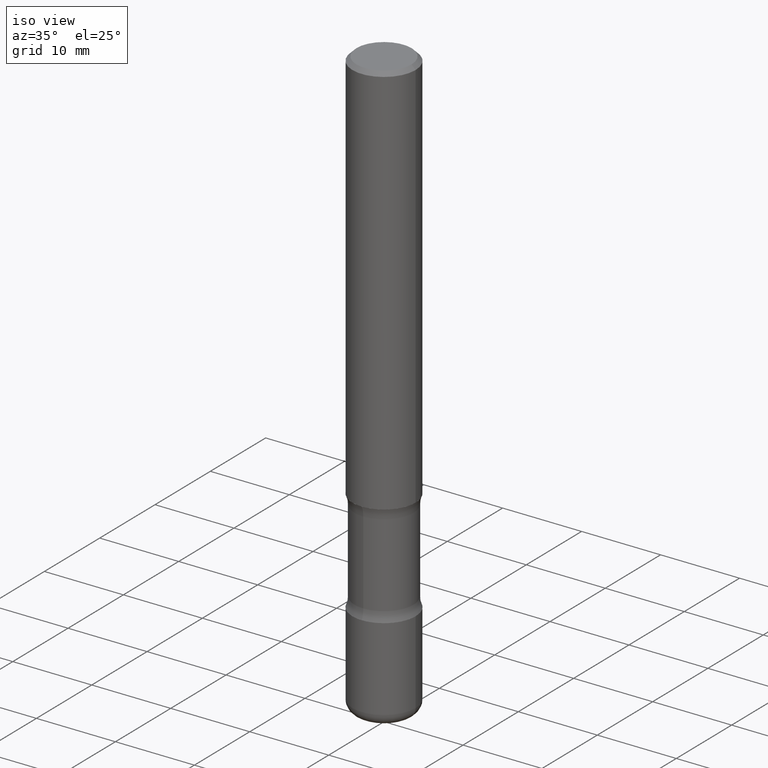
[diagram: clean part render]
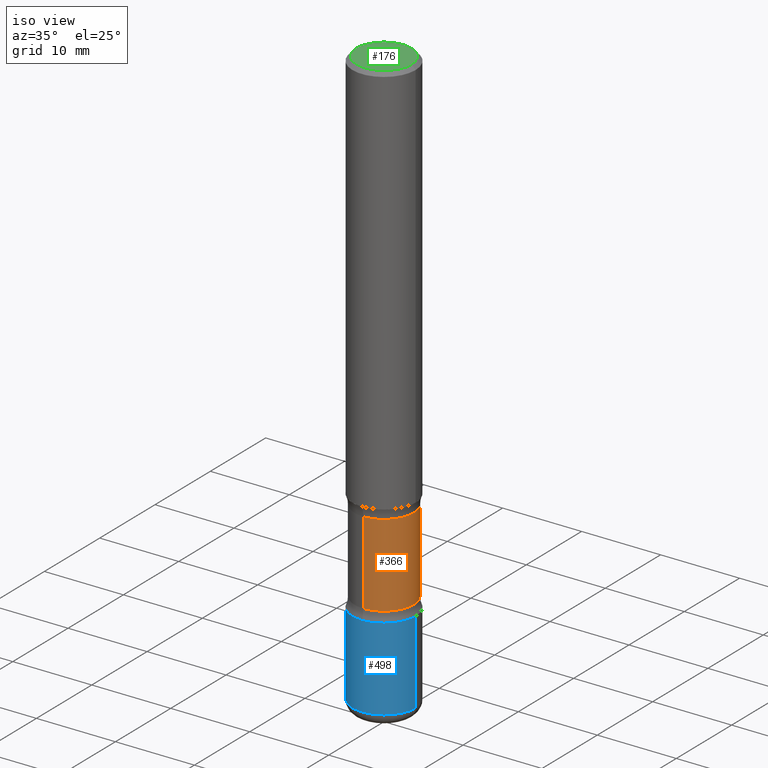
[diagram: same view with three faces highlighted in distinct colors, each labeled with its STEP entity id]
A machine part, iso view with three faces highlighted in distinct colors.
Their STEP definitions:

[orange] entity #366 — the highlighted cylindrical surface (edge-blend (fillet) strip) has radius 3.7427 mm, axis along (0, -0, -1).
#4 = ORIENTED_EDGE ( 'NONE', *, *, #415, .T. ) ;
#15 = ORIENTED_EDGE ( 'NONE', *, *, #443, .T. ) ;
#21 = CIRCLE ( 'NONE', #521, 0.1473500000000000087 ) ;
#35 = CYLINDRICAL_SURFACE ( 'NONE', #333, 0.1473500000000000087 ) ;
#42 = DIRECTION ( 'NONE',  ( 2.474888810202925163E-29, -3.449350218607033250E-15, -1.000000000000000000 ) ) ;
#63 = CARTESIAN_POINT ( 'NONE',  ( -1.010894379971562693E-15, -0.1473500000000103061, -2.952799999999998981 ) ) ;
#83 = FACE_OUTER_BOUND ( 'NONE', #147, .T. ) ;
#147 = EDGE_LOOP ( 'NONE', ( #4, #15, #193, #346 ) ) ;
#154 = DIRECTION ( 'NONE',  ( 2.474888810202925163E-29, -3.449350218607032856E-15, -1.000000000000000000 ) ) ;
#168 = AXIS2_PLACEMENT_3D ( 'NONE', #452, #489, #365 ) ;
#178 = VERTEX_POINT ( 'NONE', #423 ) ;
#185 = CIRCLE ( 'NONE', #168, 0.1473499999999999810 ) ;
#192 = EDGE_CURVE ( 'NONE', #357, #233, #21, .T. ) ;
#193 = ORIENTED_EDGE ( 'NONE', *, *, #192, .F. ) ;
#215 = CARTESIAN_POINT ( 'NONE',  ( 1.028939550557143658E-15, 0.1473499999999897114, -2.952800000000000313 ) ) ;
#220 = CARTESIAN_POINT ( 'NONE',  ( 1.028939550557130839E-15, 0.1473499999999915433, -2.431059575397043648 ) ) ;
#233 = VERTEX_POINT ( 'NONE', #341 ) ;
#253 = DIRECTION ( 'NONE',  ( 2.474888810202925163E-29, -3.449350218607033250E-15, -1.000000000000000000 ) ) ;
#256 = CARTESIAN_POINT ( 'NONE',  ( 7.234878300801473340E-29, -1.028974335613649852E-14, -2.952799999999999869 ) ) ;
#262 = VERTEX_POINT ( 'NONE', #546 ) ;
#295 = EDGE_CURVE ( 'NONE', #178, #357, #461, .T. ) ;
#333 = AXIS2_PLACEMENT_3D ( 'NONE', #256, #42, #385 ) ;
#341 = CARTESIAN_POINT ( 'NONE',  ( -1.045711407310266063E-15, -0.1473500000000085020, -2.431059575397042760 ) ) ;
#346 = ORIENTED_EDGE ( 'NONE', *, *, #295, .F. ) ;
#357 = VERTEX_POINT ( 'NONE', #220 ) ;
#365 = DIRECTION ( 'NONE',  ( 6.982962677686265133E-15, 1.000000000000000000, -3.707971487837480522E-15 ) ) ;
#366 = ADVANCED_FACE ( 'NONE', ( #83 ), #35, .T. ) ;
#377 = DIRECTION ( 'NONE',  ( 2.474888810202925163E-29, -3.449350218607032856E-15, -1.000000000000000000 ) ) ;
#384 = DIRECTION ( 'NONE',  ( 6.982962677686266711E-15, 1.000000000000000000, -3.707971487837479733E-15 ) ) ;
#385 = DIRECTION ( 'NONE',  ( 6.982962677686265133E-15, 1.000000000000000000, -3.707971487837479733E-15 ) ) ;
#415 = EDGE_CURVE ( 'NONE', #178, #262, #185, .T. ) ;
#416 = LINE ( 'NONE', #63, #459 ) ;
#423 = CARTESIAN_POINT ( 'NONE',  ( 1.028939550557120386E-15, 0.1473499999999929033, -2.017840424602956872 ) ) ;
#443 = EDGE_CURVE ( 'NONE', #262, #233, #416, .T. ) ;
#452 = CARTESIAN_POINT ( 'NONE',  ( 4.920957309659253149E-29, -7.064740340351969652E-15, -2.017840424602956428 ) ) ;
#459 = VECTOR ( 'NONE', #154, 39.37007874015748143 ) ;
#461 = LINE ( 'NONE', #215, #477 ) ;
#477 = VECTOR ( 'NONE', #377, 39.37007874015748143 ) ;
#489 = DIRECTION ( 'NONE',  ( 2.474888810202925163E-29, -3.449350218607033250E-15, -1.000000000000000000 ) ) ;
#521 = AXIS2_PLACEMENT_3D ( 'NONE', #540, #253, #384 ) ;
#540 = CARTESIAN_POINT ( 'NONE',  ( 5.943628762121094077E-29, -8.490077908476165751E-15, -2.431059575397043204 ) ) ;
#546 = CARTESIAN_POINT ( 'NONE',  ( -1.045711407310277305E-15, -0.1473500000000070587, -2.017840424602955984 ) ) ;

[blue] entity #498 — the highlighted cylindrical surface (partial cylindrical patch) has radius 4.0005 mm, axis along (-0, 0, 1).
#38 = CARTESIAN_POINT ( 'NONE',  ( 7.076453084457931092E-29, -1.010329955021041128E-14, -2.893700000000000383 ) ) ;
#43 = CARTESIAN_POINT ( 'NONE',  ( -0.1575000000000001399, -8.262680122716315885E-15, -2.480399999999999494 ) ) ;
#49 = VERTEX_POINT ( 'NONE', #68 ) ;
#51 = EDGE_CURVE ( 'NONE', #49, #234, #418, .T. ) ;
#52 = DIRECTION ( 'NONE',  ( -2.445468806185136597E-29, 3.491481338843145583E-15, 1.000000000000000000 ) ) ;
#61 = DIRECTION ( 'NONE',  ( 1.000000000000000000, -6.982962677686268288E-15, 0.000000000000000000 ) ) ;
#68 = CARTESIAN_POINT ( 'NONE',  ( -0.1575000000000003064, -8.984194741388252103E-15, -2.893700000000000383 ) ) ;
#97 = AXIS2_PLACEMENT_3D ( 'NONE', #191, #52, #61 ) ;
#116 = DIRECTION ( 'NONE',  ( -2.445468806185136877E-29, 3.491481338843145188E-15, 1.000000000000000000 ) ) ;
#118 = DIRECTION ( 'NONE',  ( -2.445468806185136597E-29, 3.491481338843145583E-15, 1.000000000000000000 ) ) ;
#130 = VERTEX_POINT ( 'NONE', #509 ) ;
#131 = ORIENTED_EDGE ( 'NONE', *, *, #51, .F. ) ;
#133 = ORIENTED_EDGE ( 'NONE', *, *, #481, .T. ) ;
#158 = CARTESIAN_POINT ( 'NONE',  ( -0.1575000000000001676, 1.119104808822158984E-15, -7.747322767151485392E-30 ) ) ;
#169 = VECTOR ( 'NONE', #353, 39.37007874015748143 ) ;
#188 = FACE_OUTER_BOUND ( 'NONE', #395, .T. ) ;
#191 = CARTESIAN_POINT ( 'NONE',  ( 6.065740826861612418E-29, -8.660270312866537270E-15, -2.480399999999999494 ) ) ;
#194 = CARTESIAN_POINT ( 'NONE',  ( 0.000000000000000000, 0.000000000000000000, 0.000000000000000000 ) ) ;
#211 = VERTEX_POINT ( 'NONE', #506 ) ;
#217 = DIRECTION ( 'NONE',  ( 1.000000000000000000, -6.982962677686265922E-15, 0.000000000000000000 ) ) ;
#234 = VERTEX_POINT ( 'NONE', #43 ) ;
#279 = ORIENTED_EDGE ( 'NONE', *, *, #475, .F. ) ;
#332 = EDGE_CURVE ( 'NONE', #49, #211, #503, .T. ) ;
#353 = DIRECTION ( 'NONE',  ( -2.445468806185136877E-29, 3.491481338843145188E-15, 1.000000000000000000 ) ) ;
#356 = LINE ( 'NONE', #479, #169 ) ;
#359 = CIRCLE ( 'NONE', #97, 0.1575000000000001399 ) ;
#395 = EDGE_LOOP ( 'NONE', ( #131, #404, #133, #279 ) ) ;
#400 = AXIS2_PLACEMENT_3D ( 'NONE', #194, #409, #535 ) ;
#404 = ORIENTED_EDGE ( 'NONE', *, *, #332, .T. ) ;
#409 = DIRECTION ( 'NONE',  ( -2.445468806185136597E-29, 3.491481338843145583E-15, 1.000000000000000000 ) ) ;
#418 = LINE ( 'NONE', #158, #551 ) ;
#449 = AXIS2_PLACEMENT_3D ( 'NONE', #38, #118, #217 ) ;
#475 = EDGE_CURVE ( 'NONE', #234, #130, #359, .T. ) ;
#479 = CARTESIAN_POINT ( 'NONE',  ( 0.1575000000000001676, -1.099816621735588269E-15, 7.679978421878606441E-30 ) ) ;
#481 = EDGE_CURVE ( 'NONE', #211, #130, #356, .T. ) ;
#498 = ADVANCED_FACE ( 'NONE', ( #188 ), #525, .T. ) ;
#503 = CIRCLE ( 'NONE', #449, 0.1575000000000001954 ) ;
#506 = CARTESIAN_POINT ( 'NONE',  ( 0.1575000000000003064, -1.120311617194600113E-14, -2.893700000000000383 ) ) ;
#509 = CARTESIAN_POINT ( 'NONE',  ( 0.1575000000000001399, -9.760086934602125539E-15, -2.480399999999999494 ) ) ;
#525 = CYLINDRICAL_SURFACE ( 'NONE', #400, 0.1575000000000001676 ) ;
#535 = DIRECTION ( 'NONE',  ( 1.000000000000000000, -6.982962677686267499E-15, 4.876176775795935232E-29 ) ) ;
#551 = VECTOR ( 'NONE', #116, 39.37007874015748143 ) ;

[green] entity #176 — the highlighted planar face has unit normal (0, -0, -1).
#2 = VERTEX_POINT ( 'NONE', #59 ) ;
#3 = AXIS2_PLACEMENT_3D ( 'NONE', #246, #336, #368 ) ;
#46 = EDGE_LOOP ( 'NONE', ( #484, #340 ) ) ;
#47 = EDGE_CURVE ( 'NONE', #355, #2, #322, .T. ) ;
#59 = CARTESIAN_POINT ( 'NONE',  ( 0.1374999999999999278, -1.046838268059731900E-15, 4.268512490107428597E-18 ) ) ;
#135 = EDGE_CURVE ( 'NONE', #2, #355, #483, .T. ) ;
#171 = DIRECTION ( 'NONE',  ( -2.445468806185136597E-29, 3.491481338843145583E-15, 1.000000000000000000 ) ) ;
#176 = ADVANCED_FACE ( 'NONE', ( #292 ), #371, .F. ) ;
#208 = CARTESIAN_POINT ( 'NONE',  ( -1.043851414335219820E-46, 1.490343170380447200E-32, 4.268512490100411279E-18 ) ) ;
#246 = CARTESIAN_POINT ( 'NONE',  ( 9.601573681818610811E-16, 0.1374999999999999278, -4.779444278458821021E-16 ) ) ;
#292 = FACE_OUTER_BOUND ( 'NONE', #46, .T. ) ;
#297 = CARTESIAN_POINT ( 'NONE',  ( -0.1374999999999999278, 9.950721815702923357E-16, 4.268512490093574228E-18 ) ) ;
#300 = AXIS2_PLACEMENT_3D ( 'NONE', #208, #171, #433 ) ;
#322 = CIRCLE ( 'NONE', #350, 0.1374999999999999278 ) ;
#323 = DIRECTION ( 'NONE',  ( -2.445468806185136597E-29, 3.491481338843145583E-15, 1.000000000000000000 ) ) ;
#336 = DIRECTION ( 'NONE',  ( 2.438088387897960049E-29, -3.491481338843145188E-15, -1.000000000000000000 ) ) ;
#340 = ORIENTED_EDGE ( 'NONE', *, *, #135, .T. ) ;
#350 = AXIS2_PLACEMENT_3D ( 'NONE', #524, #323, #493 ) ;
#355 = VERTEX_POINT ( 'NONE', #297 ) ;
#368 = DIRECTION ( 'NONE',  ( -1.000000000000000000, 6.982962677686265922E-15, -4.876176775795935793E-29 ) ) ;
#371 = PLANE ( 'NONE',  #3 ) ;
#433 = DIRECTION ( 'NONE',  ( 1.000000000000000000, -6.982962677686265922E-15, 4.876173381029102845E-29 ) ) ;
#483 = CIRCLE ( 'NONE', #300, 0.1374999999999999278 ) ;
#484 = ORIENTED_EDGE ( 'NONE', *, *, #47, .T. ) ;
#493 = DIRECTION ( 'NONE',  ( 1.000000000000000000, -6.982962677686265922E-15, 4.876173381029102845E-29 ) ) ;
#524 = CARTESIAN_POINT ( 'NONE',  ( -1.043851414335219820E-46, 1.490343170380447200E-32, 4.268512490100411279E-18 ) ) ;